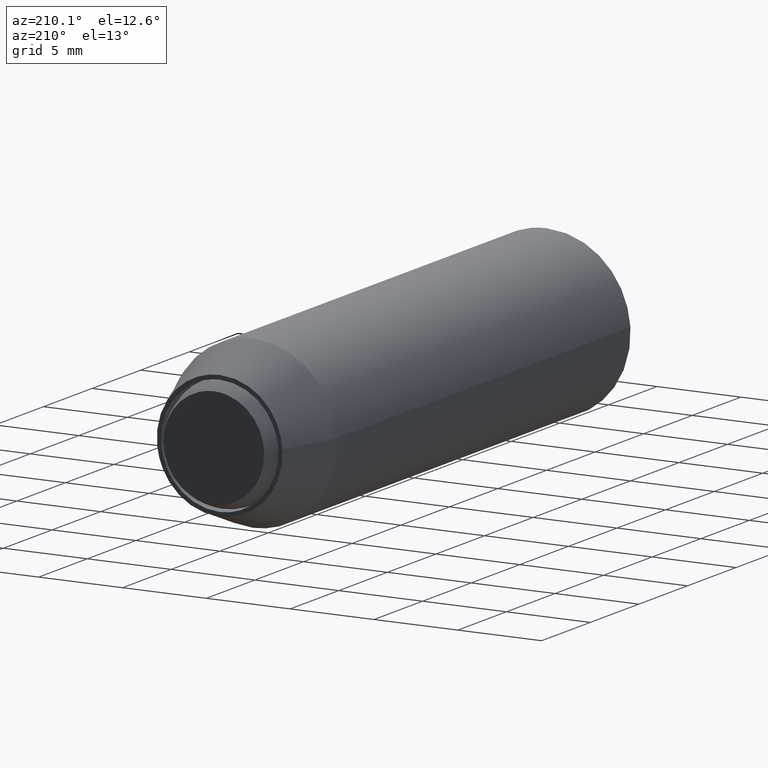
[diagram: clean part render]
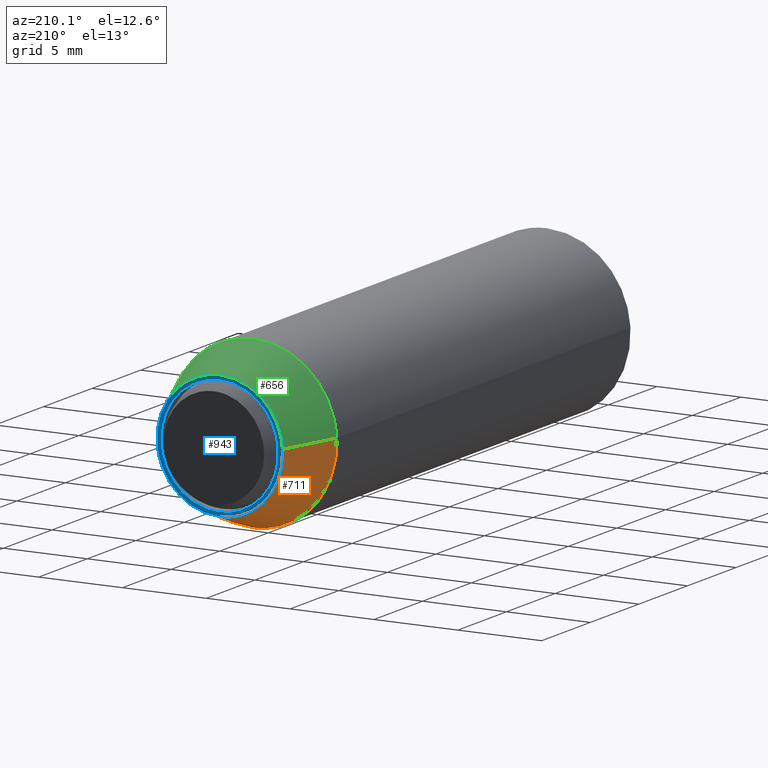
[diagram: same view with three faces highlighted in distinct colors, each labeled with its STEP entity id]
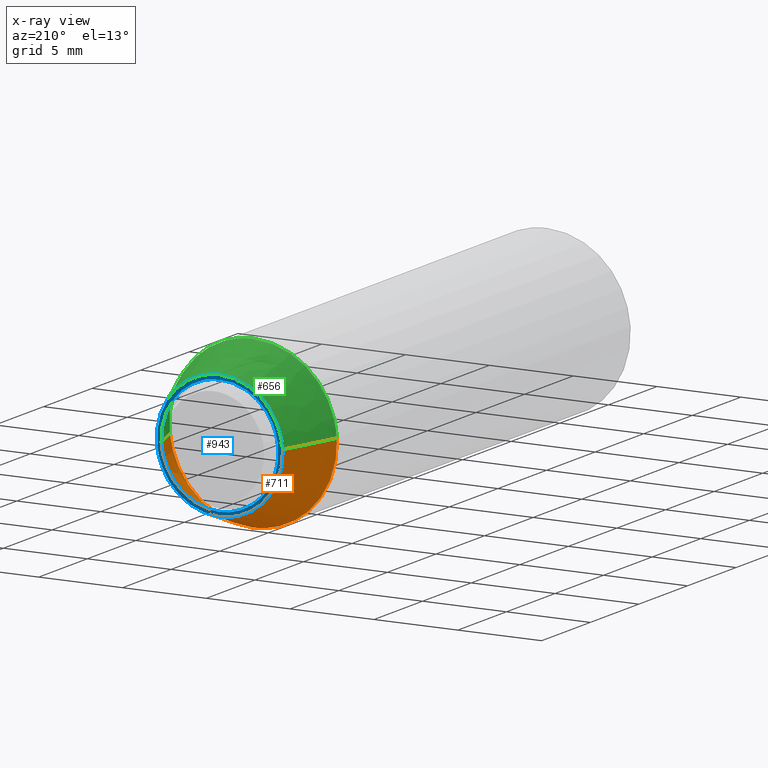
[diagram: x-ray of the same camera — body ghosted, the three highlighted faces saturated]
A machine part, auxiliary view with three faces highlighted in distinct colors.
The next image is the same camera in x-ray (body ghosted, the three faces saturated) — at least one of them is partly hidden behind the body in this view.
Their STEP definitions:

[orange] entity #711 — the highlighted face is a freeform B-spline surface patch.
#477=CARTESIAN_POINT('',(-4.990673992109441,-3.434347000007194,0.305242697693963));
#478=VERTEX_POINT('',#477);
#530=CARTESIAN_POINT('',(4.965047631817228,-3.434347000004106,-0.590171173305738));
#531=VERTEX_POINT('',#530);
#552=CARTESIAN_POINT('',(0.0,-3.434347000000000,-5.000000000000001));
#553=VERTEX_POINT('',#552);
#554=CARTESIAN_POINT('',(-4.990673992109441,-3.434347000007194,0.305242697693963));
#555=CARTESIAN_POINT('',(-4.999999999999999,-3.434347000000000,0.152763816532252));
#556=CARTESIAN_POINT('',(-5.0,-3.434347000000000,-7.898711E-016));
#557=CARTESIAN_POINT('',(-5.000000000000001,-3.434347000000000,-5.000000000000002));
#558=CARTESIAN_POINT('',(0.0,-3.434347000000000,-5.000000000000001));
#566=(BOUNDED_CURVE()B_SPLINE_CURVE(2,(#554,#555,#556,#557,#558),.UNSPECIFIED.,.F.,.U.)B_SPLINE_CURVE_WITH_KNOTS((3,2,3),(0.739332962239258,0.750000000000000,1.0),.UNSPECIFIED.)CURVE()GEOMETRIC_REPRESENTATION_ITEM()RATIONAL_B_SPLINE_CURVE((0.976072041667393,0.987502787900206,1.0,0.707106781186548,1.0))REPRESENTATION_ITEM(''));
#567=EDGE_CURVE('',#478,#553,#566,.T.);
#569=CARTESIAN_POINT('',(0.0,-3.434347000000000,-5.000000000000001));
#570=CARTESIAN_POINT('',(4.440872629717623,-3.434347000000000,-5.000000000000002));
#571=CARTESIAN_POINT('',(4.965047631817228,-3.434347000004106,-0.590171173305738));
#579=(BOUNDED_CURVE()B_SPLINE_CURVE(2,(#569,#570,#571),.UNSPECIFIED.,.F.,.U.)B_SPLINE_CURVE_WITH_KNOTS((3,3),(0.0,0.229562473514162),.UNSPECIFIED.)CURVE()GEOMETRIC_REPRESENTATION_ITEM()RATIONAL_B_SPLINE_CURVE((1.0,0.731050832854636,0.956026754184981))REPRESENTATION_ITEM(''));
#580=EDGE_CURVE('',#553,#531,#579,.T.);
#608=CARTESIAN_POINT('',(3.723785723862184,-5.842315E-012,-0.442628379994026));
#609=VERTEX_POINT('',#608);
#610=CARTESIAN_POINT('',(3.723785723862184,-5.842315E-012,-0.442628379994026));
#611=CARTESIAN_POINT('',(4.965047631817228,-3.434347000004106,-0.590171173305738));
#612=QUASI_UNIFORM_CURVE('',1,(#610,#611),.UNSPECIFIED.,.F.,.U.);
#613=EDGE_CURVE('',#609,#531,#612,.T.);
#632=CARTESIAN_POINT('',(-3.743005494082282,-9.314445E-012,0.228932023306648));
#633=VERTEX_POINT('',#632);
#647=CARTESIAN_POINT('',(-3.743005494082282,-9.314445E-012,0.228932023306648));
#648=CARTESIAN_POINT('',(-4.990673992109441,-3.434347000007194,0.305242697693963));
#649=QUASI_UNIFORM_CURVE('',1,(#647,#648),.UNSPECIFIED.,.F.,.U.);
#650=EDGE_CURVE('',#633,#478,#649,.T.);
#657=CARTESIAN_POINT('',(-3.711813781631317,0.085858675000000,0.227024256395249));
#658=CARTESIAN_POINT('',(-3.938838038026567,0.085858675000000,-3.484789525236069));
#659=CARTESIAN_POINT('',(-0.227024256395249,0.085858675000000,-3.711813781631318));
#660=CARTESIAN_POINT('',(3.278239856559394,0.085858675000000,-3.926204919099088));
#661=CARTESIAN_POINT('',(3.692754176164883,0.085858675000000,-0.438939810129821));
#662=CARTESIAN_POINT('',(-5.022645497371283,-3.522352141875000,0.307198158706260));
#663=CARTESIAN_POINT('',(-5.329843656077543,-3.522352141875000,-4.715447338665022));
#664=CARTESIAN_POINT('',(-0.307198158706261,-3.522352141875000,-5.022645497371284));
#665=CARTESIAN_POINT('',(4.435954394138456,-3.522352141875000,-5.312749135276726));
#666=CARTESIAN_POINT('',(4.996854968209667,-3.522352141875000,-0.593951957362642));
#674=(BOUNDED_SURFACE()B_SPLINE_SURFACE(2,1,((#657,#662),(#658,#663),(#659,#664),(#660,#665),(#661,#666)),.UNSPECIFIED.,.F.,.F.,.U.)B_SPLINE_SURFACE_WITH_KNOTS((3,2,3),(2,2),(0.0,8.337342360140951,16.341191025876260),(0.0,3.839777720209246),.UNSPECIFIED.)GEOMETRIC_REPRESENTATION_ITEM()RATIONAL_B_SPLINE_SURFACE(((1.0,1.0),(0.707106781186548,0.707106781186548),(1.0,1.0),(0.718822509939086,0.718822509939086),(0.977505800795127,0.977505800795127)))REPRESENTATION_ITEM('')SURFACE());
#675=ORIENTED_EDGE('',*,*,#580,.F.);
#676=ORIENTED_EDGE('',*,*,#567,.F.);
#677=ORIENTED_EDGE('',*,*,#650,.F.);
#678=CARTESIAN_POINT('',(0.0,0.0,-3.750000000000001));
#679=VERTEX_POINT('',#678);
#680=CARTESIAN_POINT('',(-3.743005494082282,-9.314445E-012,0.228932023306648));
#681=CARTESIAN_POINT('',(-3.750000000000000,0.0,0.114572862420578));
#682=CARTESIAN_POINT('',(-3.750000000000000,0.0,-7.898711E-016));
#683=CARTESIAN_POINT('',(-3.750000000000000,0.0,-3.750000000000002));
#684=CARTESIAN_POINT('',(0.0,0.0,-3.750000000000001));
#692=(BOUNDED_CURVE()B_SPLINE_CURVE(2,(#680,#681,#682,#683,#684),.UNSPECIFIED.,.F.,.U.)B_SPLINE_CURVE_WITH_KNOTS((3,2,3),(0.739332962237291,0.750000000000000,1.0),.UNSPECIFIED.)CURVE()GEOMETRIC_REPRESENTATION_ITEM()RATIONAL_B_SPLINE_CURVE((0.976072041663178,0.987502787897902,1.0,0.707106781186547,1.0))REPRESENTATION_ITEM(''));
#693=EDGE_CURVE('',#633,#679,#692,.T.);
#694=ORIENTED_EDGE('',*,*,#693,.T.);
#695=CARTESIAN_POINT('',(0.0,0.0,-3.750000000000001));
#696=CARTESIAN_POINT('',(3.330654472261908,0.0,-3.750000000000001));
#697=CARTESIAN_POINT('',(3.723785723862184,-5.842315E-012,-0.442628379994026));
#705=(BOUNDED_CURVE()B_SPLINE_CURVE(2,(#695,#696,#697),.UNSPECIFIED.,.F.,.U.)B_SPLINE_CURVE_WITH_KNOTS((3,3),(0.0,0.229562473512837),.UNSPECIFIED.)CURVE()GEOMETRIC_REPRESENTATION_ITEM()RATIONAL_B_SPLINE_CURVE((1.0,0.731050832856189,0.956026754182383))REPRESENTATION_ITEM(''));
#706=EDGE_CURVE('',#679,#609,#705,.T.);
#707=ORIENTED_EDGE('',*,*,#706,.T.);
#708=ORIENTED_EDGE('',*,*,#613,.T.);
#709=EDGE_LOOP('',(#675,#676,#677,#694,#707,#708));
#710=FACE_OUTER_BOUND('',#709,.T.);
#711=ADVANCED_FACE('',(#710),#674,.T.);

[blue] entity #943 — the highlighted face is a freeform B-spline surface patch.
#100=CARTESIAN_POINT('',(3.493471794474528,1.804112E-016,-0.213669888404798));
#101=VERTEX_POINT('',#100);
#107=CARTESIAN_POINT('',(0.0,0.0,-3.500000000000000));
#108=VERTEX_POINT('',#107);
#109=CARTESIAN_POINT('',(0.0,0.0,-3.500000000000000));
#110=CARTESIAN_POINT('',(3.292471234107977,0.0,-3.500000000000001));
#111=CARTESIAN_POINT('',(3.493471794474527,1.804112E-016,-0.213669888404798));
#119=(BOUNDED_CURVE()B_SPLINE_CURVE(2,(#109,#110,#111),.UNSPECIFIED.,.F.,.U.)B_SPLINE_CURVE_WITH_KNOTS((3,3),(0.500000000000000,0.739332962238727),.UNSPECIFIED.)CURVE()GEOMETRIC_REPRESENTATION_ITEM()RATIONAL_B_SPLINE_CURVE((1.0,0.719603993286962,0.976072041666256))REPRESENTATION_ITEM(''));
#120=EDGE_CURVE('',#108,#101,#119,.T.);
#122=CARTESIAN_POINT('',(-3.475533342270658,1.774643E-016,0.413119821316946));
#123=VERTEX_POINT('',#122);
#124=CARTESIAN_POINT('',(-3.475533342270658,1.774643E-016,0.413119821316946));
#125=CARTESIAN_POINT('',(-3.500000000000000,0.0,0.207284418800170));
#126=CARTESIAN_POINT('',(-3.500000000000000,0.0,0.0));
#127=CARTESIAN_POINT('',(-3.500000000000000,0.0,-3.500000000000000));
#128=CARTESIAN_POINT('',(0.0,0.0,-3.500000000000000));
#136=(BOUNDED_CURVE()B_SPLINE_CURVE(2,(#124,#125,#126,#127,#128),.UNSPECIFIED.,.F.,.U.)B_SPLINE_CURVE_WITH_KNOTS((3,2,3),(0.229562473513865,0.250000000000000,0.500000000000000),.UNSPECIFIED.)CURVE()GEOMETRIC_REPRESENTATION_ITEM()RATIONAL_B_SPLINE_CURVE((0.956026754184399,0.976055948331563,1.0,0.707106781186547,1.0))REPRESENTATION_ITEM(''));
#137=EDGE_CURVE('',#123,#108,#136,.T.);
#181=CARTESIAN_POINT('',(0.0,0.0,3.500000000000000));
#182=VERTEX_POINT('',#181);
#183=CARTESIAN_POINT('',(0.0,0.0,3.500000000000000));
#184=CARTESIAN_POINT('',(-3.108610840796834,0.0,3.500000000000000));
#185=CARTESIAN_POINT('',(-3.475533342270658,1.774643E-016,0.413119821316946));
#193=(BOUNDED_CURVE()B_SPLINE_CURVE(2,(#183,#184,#185),.UNSPECIFIED.,.F.,.U.)B_SPLINE_CURVE_WITH_KNOTS((3,3),(0.0,0.229562473513865),.UNSPECIFIED.)CURVE()GEOMETRIC_REPRESENTATION_ITEM()RATIONAL_B_SPLINE_CURVE((1.0,0.731050832854984,0.956026754184399))REPRESENTATION_ITEM(''));
#194=EDGE_CURVE('',#182,#123,#193,.T.);
#196=CARTESIAN_POINT('',(3.493471794474528,1.804112E-016,-0.213669888404798));
#197=CARTESIAN_POINT('',(3.500000000000000,0.0,-0.106934671577952));
#198=CARTESIAN_POINT('',(3.500000000000000,0.0,0.0));
#199=CARTESIAN_POINT('',(3.500000000000000,0.0,3.500000000000000));
#200=CARTESIAN_POINT('',(0.0,0.0,3.500000000000000));
#208=(BOUNDED_CURVE()B_SPLINE_CURVE(2,(#196,#197,#198,#199,#200),.UNSPECIFIED.,.F.,.U.)B_SPLINE_CURVE_WITH_KNOTS((3,2,3),(0.739332962238728,0.750000000000000,1.0),.UNSPECIFIED.)CURVE()GEOMETRIC_REPRESENTATION_ITEM()RATIONAL_B_SPLINE_CURVE((0.976072041666258,0.987502787899586,1.0,0.707106781186547,1.0))REPRESENTATION_ITEM(''));
#209=EDGE_CURVE('',#101,#182,#208,.T.);
#608=CARTESIAN_POINT('',(3.723785723862184,-5.842315E-012,-0.442628379994026));
#609=VERTEX_POINT('',#608);
#615=CARTESIAN_POINT('',(0.0,0.0,3.749999999999999));
#616=VERTEX_POINT('',#615);
#617=CARTESIAN_POINT('',(3.723785723862184,-5.842315E-012,-0.442628379994026));
#618=CARTESIAN_POINT('',(3.750000000000001,0.0,-0.222090448725920));
#619=CARTESIAN_POINT('',(3.750000000000000,0.0,-7.898711E-016));
#620=CARTESIAN_POINT('',(3.750000000000000,0.0,3.749999999999999));
#621=CARTESIAN_POINT('',(0.0,0.0,3.749999999999999));
#629=(BOUNDED_CURVE()B_SPLINE_CURVE(2,(#617,#618,#619,#620,#621),.UNSPECIFIED.,.F.,.U.)B_SPLINE_CURVE_WITH_KNOTS((3,2,3),(0.229562473512837,0.250000000000000,0.500000000000000),.UNSPECIFIED.)CURVE()GEOMETRIC_REPRESENTATION_ITEM()RATIONAL_B_SPLINE_CURVE((0.956026754182383,0.976055948330358,1.0,0.707106781186547,1.0))REPRESENTATION_ITEM(''));
#630=EDGE_CURVE('',#609,#616,#629,.T.);
#632=CARTESIAN_POINT('',(-3.743005494082282,-9.314445E-012,0.228932023306648));
#633=VERTEX_POINT('',#632);
#634=CARTESIAN_POINT('',(0.0,0.0,3.749999999999999));
#635=CARTESIAN_POINT('',(-3.527647750800547,0.0,3.749999999999998));
#636=CARTESIAN_POINT('',(-3.743005494082282,-9.314445E-012,0.228932023306648));
#644=(BOUNDED_CURVE()B_SPLINE_CURVE(2,(#634,#635,#636),.UNSPECIFIED.,.F.,.U.)B_SPLINE_CURVE_WITH_KNOTS((3,3),(0.500000000000000,0.739332962237291),.UNSPECIFIED.)CURVE()GEOMETRIC_REPRESENTATION_ITEM()RATIONAL_B_SPLINE_CURVE((1.0,0.719603993288646,0.976072041663177))REPRESENTATION_ITEM(''));
#645=EDGE_CURVE('',#616,#633,#644,.T.);
#678=CARTESIAN_POINT('',(0.0,0.0,-3.750000000000001));
#679=VERTEX_POINT('',#678);
#680=CARTESIAN_POINT('',(-3.743005494082282,-9.314445E-012,0.228932023306648));
#681=CARTESIAN_POINT('',(-3.750000000000000,0.0,0.114572862420578));
#682=CARTESIAN_POINT('',(-3.750000000000000,0.0,-7.898711E-016));
#683=CARTESIAN_POINT('',(-3.750000000000000,0.0,-3.750000000000002));
#684=CARTESIAN_POINT('',(0.0,0.0,-3.750000000000001));
#692=(BOUNDED_CURVE()B_SPLINE_CURVE(2,(#680,#681,#682,#683,#684),.UNSPECIFIED.,.F.,.U.)B_SPLINE_CURVE_WITH_KNOTS((3,2,3),(0.739332962237291,0.750000000000000,1.0),.UNSPECIFIED.)CURVE()GEOMETRIC_REPRESENTATION_ITEM()RATIONAL_B_SPLINE_CURVE((0.976072041663178,0.987502787897902,1.0,0.707106781186547,1.0))REPRESENTATION_ITEM(''));
#693=EDGE_CURVE('',#633,#679,#692,.T.);
#695=CARTESIAN_POINT('',(0.0,0.0,-3.750000000000001));
#696=CARTESIAN_POINT('',(3.330654472261908,0.0,-3.750000000000001));
#697=CARTESIAN_POINT('',(3.723785723862184,-5.842315E-012,-0.442628379994026));
#705=(BOUNDED_CURVE()B_SPLINE_CURVE(2,(#695,#696,#697),.UNSPECIFIED.,.F.,.U.)B_SPLINE_CURVE_WITH_KNOTS((3,3),(0.0,0.229562473512837),.UNSPECIFIED.)CURVE()GEOMETRIC_REPRESENTATION_ITEM()RATIONAL_B_SPLINE_CURVE((1.0,0.731050832856189,0.956026754182383))REPRESENTATION_ITEM(''));
#706=EDGE_CURVE('',#679,#609,#705,.T.);
#926=CARTESIAN_POINT('',(-4.124533854605964,0.0,4.124624985463544));
#927=CARTESIAN_POINT('',(-4.124533854605964,0.0,-4.124625186629222));
#928=CARTESIAN_POINT('',(4.124556787493041,0.0,4.124624985463544));
#929=CARTESIAN_POINT('',(4.124556787493041,0.0,-4.124625186629222));
#930=B_SPLINE_SURFACE_WITH_KNOTS('',1,1,((#926,#928),(#927,#929)),.UNSPECIFIED.,.F.,.F.,.U.,(2,2),(2,2),(0.0,8.249250172092765),(0.0,8.249090642099006),.UNSPECIFIED.);
#931=ORIENTED_EDGE('',*,*,#693,.F.);
#932=ORIENTED_EDGE('',*,*,#645,.F.);
#933=ORIENTED_EDGE('',*,*,#630,.F.);
#934=ORIENTED_EDGE('',*,*,#706,.F.);
#935=EDGE_LOOP('',(#931,#932,#933,#934));
#936=FACE_OUTER_BOUND('',#935,.T.);
#937=ORIENTED_EDGE('',*,*,#120,.T.);
#938=ORIENTED_EDGE('',*,*,#209,.T.);
#939=ORIENTED_EDGE('',*,*,#194,.T.);
#940=ORIENTED_EDGE('',*,*,#137,.T.);
#941=EDGE_LOOP('',(#937,#938,#939,#940));
#942=FACE_BOUND('',#941,.T.);
#943=ADVANCED_FACE('',(#936,#942),#930,.F.);

[green] entity #656 — the highlighted face is a freeform B-spline surface patch.
#460=CARTESIAN_POINT('',(1.758085411978979,-3.434346999999992,4.680719569058159));
#461=VERTEX_POINT('',#460);
#462=CARTESIAN_POINT('',(0.0,-3.434347000000000,4.999999999999999));
#463=VERTEX_POINT('',#462);
#464=CARTESIAN_POINT('',(1.758085411978979,-3.434346999999991,4.680719569058159));
#465=CARTESIAN_POINT('',(0.908034469668268,-3.434346999999999,4.999999999999999));
#466=CARTESIAN_POINT('',(0.0,-3.434347000000000,4.999999999999999));
#474=(BOUNDED_CURVE()B_SPLINE_CURVE(2,(#464,#465,#466),.UNSPECIFIED.,.F.,.U.)B_SPLINE_CURVE_WITH_KNOTS((3,3),(0.440284321399975,0.500000000000000),.UNSPECIFIED.)CURVE()GEOMETRIC_REPRESENTATION_ITEM()RATIONAL_B_SPLINE_CURVE((0.893499738813557,0.930038730724837,1.0))REPRESENTATION_ITEM(''));
#475=EDGE_CURVE('',#461,#463,#474,.T.);
#477=CARTESIAN_POINT('',(-4.990673992109441,-3.434347000007194,0.305242697693963));
#478=VERTEX_POINT('',#477);
#479=CARTESIAN_POINT('',(0.0,-3.434347000000000,4.999999999999999));
#480=CARTESIAN_POINT('',(-4.703530334454459,-3.434346999999999,4.999999999999998));
#481=CARTESIAN_POINT('',(-4.990673992109441,-3.434347000007195,0.305242697693963));
#489=(BOUNDED_CURVE()B_SPLINE_CURVE(2,(#479,#480,#481),.UNSPECIFIED.,.F.,.U.)B_SPLINE_CURVE_WITH_KNOTS((3,3),(0.500000000000000,0.739332962239258),.UNSPECIFIED.)CURVE()GEOMETRIC_REPRESENTATION_ITEM()RATIONAL_B_SPLINE_CURVE((1.0,0.719603993286341,0.976072041667393))REPRESENTATION_ITEM(''));
#490=EDGE_CURVE('',#463,#478,#489,.T.);
#530=CARTESIAN_POINT('',(4.965047631817228,-3.434347000004106,-0.590171173305738));
#531=VERTEX_POINT('',#530);
#532=CARTESIAN_POINT('',(4.965047631817228,-3.434347000004106,-0.590171173305738));
#533=CARTESIAN_POINT('',(5.000000000000001,-3.434347000000000,-0.296120598281550));
#534=CARTESIAN_POINT('',(5.0,-3.434347000000000,-7.898711E-016));
#535=CARTESIAN_POINT('',(5.0,-3.434347000000000,3.463051503287431));
#536=CARTESIAN_POINT('',(1.758085411978979,-3.434346999999991,4.680719569058159));
#544=(BOUNDED_CURVE()B_SPLINE_CURVE(2,(#532,#533,#534,#535,#536),.UNSPECIFIED.,.F.,.U.)B_SPLINE_CURVE_WITH_KNOTS((3,2,3),(0.229562473514162,0.250000000000000,0.440284321399975),.UNSPECIFIED.)CURVE()GEOMETRIC_REPRESENTATION_ITEM()RATIONAL_B_SPLINE_CURVE((0.956026754184981,0.976055948331911,1.0,0.777068050461711,0.893499738813557))REPRESENTATION_ITEM(''));
#545=EDGE_CURVE('',#531,#461,#544,.T.);
#585=CARTESIAN_POINT('',(3.692754176164883,0.085858675000000,-0.438939810129821));
#586=CARTESIAN_POINT('',(3.705316444949502,0.085858675000000,-0.333254772122480));
#587=CARTESIAN_POINT('',(3.711813781631317,0.085858675000000,-0.227024256395250));
#588=CARTESIAN_POINT('',(3.938838038026567,0.085858675000000,3.484789525236066));
#589=CARTESIAN_POINT('',(0.227024256395249,0.085858675000000,3.711813781631316));
#590=CARTESIAN_POINT('',(-3.484789525236068,0.085858675000000,3.938838038026566));
#591=CARTESIAN_POINT('',(-3.711813781631317,0.085858675000000,0.227024256395249));
#592=CARTESIAN_POINT('',(4.996854968209667,-3.522352141875000,-0.593951957362642));
#593=CARTESIAN_POINT('',(5.013853618050365,-3.522352141875000,-0.450944114966574));
#594=CARTESIAN_POINT('',(5.022645497371283,-3.522352141875000,-0.307198158706261));
#595=CARTESIAN_POINT('',(5.329843656077543,-3.522352141875000,4.715447338665021));
#596=CARTESIAN_POINT('',(0.307198158706261,-3.522352141875000,5.022645497371282));
#597=CARTESIAN_POINT('',(-4.715447338665021,-3.522352141875000,5.329843656077543));
#598=CARTESIAN_POINT('',(-5.022645497371283,-3.522352141875000,0.307198158706260));
#606=(BOUNDED_SURFACE()B_SPLINE_SURFACE(2,1,((#585,#592),(#586,#593),(#587,#594),(#588,#595),(#589,#596),(#590,#597),(#591,#598)),.UNSPECIFIED.,.F.,.F.,.U.)B_SPLINE_SURFACE_WITH_KNOTS((3,2,2,3),(2,2),(0.0,0.333493694405638,8.670836054546589,17.008178414687539),(0.0,3.839777720209246),.UNSPECIFIED.)GEOMETRIC_REPRESENTATION_ITEM()RATIONAL_B_SPLINE_SURFACE(((0.977505800795127,0.977505800795127),(0.988284271247462,0.988284271247462),(1.0,1.0),(0.707106781186548,0.707106781186548),(1.0,1.0),(0.707106781186548,0.707106781186548),(1.0,1.0)))REPRESENTATION_ITEM('')SURFACE());
#607=ORIENTED_EDGE('',*,*,#545,.F.);
#608=CARTESIAN_POINT('',(3.723785723862184,-5.842315E-012,-0.442628379994026));
#609=VERTEX_POINT('',#608);
#610=CARTESIAN_POINT('',(3.723785723862184,-5.842315E-012,-0.442628379994026));
#611=CARTESIAN_POINT('',(4.965047631817228,-3.434347000004106,-0.590171173305738));
#612=QUASI_UNIFORM_CURVE('',1,(#610,#611),.UNSPECIFIED.,.F.,.U.);
#613=EDGE_CURVE('',#609,#531,#612,.T.);
#614=ORIENTED_EDGE('',*,*,#613,.F.);
#615=CARTESIAN_POINT('',(0.0,0.0,3.749999999999999));
#616=VERTEX_POINT('',#615);
#617=CARTESIAN_POINT('',(3.723785723862184,-5.842315E-012,-0.442628379994026));
#618=CARTESIAN_POINT('',(3.750000000000001,0.0,-0.222090448725920));
#619=CARTESIAN_POINT('',(3.750000000000000,0.0,-7.898711E-016));
#620=CARTESIAN_POINT('',(3.750000000000000,0.0,3.749999999999999));
#621=CARTESIAN_POINT('',(0.0,0.0,3.749999999999999));
#629=(BOUNDED_CURVE()B_SPLINE_CURVE(2,(#617,#618,#619,#620,#621),.UNSPECIFIED.,.F.,.U.)B_SPLINE_CURVE_WITH_KNOTS((3,2,3),(0.229562473512837,0.250000000000000,0.500000000000000),.UNSPECIFIED.)CURVE()GEOMETRIC_REPRESENTATION_ITEM()RATIONAL_B_SPLINE_CURVE((0.956026754182383,0.976055948330358,1.0,0.707106781186547,1.0))REPRESENTATION_ITEM(''));
#630=EDGE_CURVE('',#609,#616,#629,.T.);
#631=ORIENTED_EDGE('',*,*,#630,.T.);
#632=CARTESIAN_POINT('',(-3.743005494082282,-9.314445E-012,0.228932023306648));
#633=VERTEX_POINT('',#632);
#634=CARTESIAN_POINT('',(0.0,0.0,3.749999999999999));
#635=CARTESIAN_POINT('',(-3.527647750800547,0.0,3.749999999999998));
#636=CARTESIAN_POINT('',(-3.743005494082282,-9.314445E-012,0.228932023306648));
#644=(BOUNDED_CURVE()B_SPLINE_CURVE(2,(#634,#635,#636),.UNSPECIFIED.,.F.,.U.)B_SPLINE_CURVE_WITH_KNOTS((3,3),(0.500000000000000,0.739332962237291),.UNSPECIFIED.)CURVE()GEOMETRIC_REPRESENTATION_ITEM()RATIONAL_B_SPLINE_CURVE((1.0,0.719603993288646,0.976072041663177))REPRESENTATION_ITEM(''));
#645=EDGE_CURVE('',#616,#633,#644,.T.);
#646=ORIENTED_EDGE('',*,*,#645,.T.);
#647=CARTESIAN_POINT('',(-3.743005494082282,-9.314445E-012,0.228932023306648));
#648=CARTESIAN_POINT('',(-4.990673992109441,-3.434347000007194,0.305242697693963));
#649=QUASI_UNIFORM_CURVE('',1,(#647,#648),.UNSPECIFIED.,.F.,.U.);
#650=EDGE_CURVE('',#633,#478,#649,.T.);
#651=ORIENTED_EDGE('',*,*,#650,.T.);
#652=ORIENTED_EDGE('',*,*,#490,.F.);
#653=ORIENTED_EDGE('',*,*,#475,.F.);
#654=EDGE_LOOP('',(#607,#614,#631,#646,#651,#652,#653));
#655=FACE_OUTER_BOUND('',#654,.T.);
#656=ADVANCED_FACE('',(#655),#606,.T.);